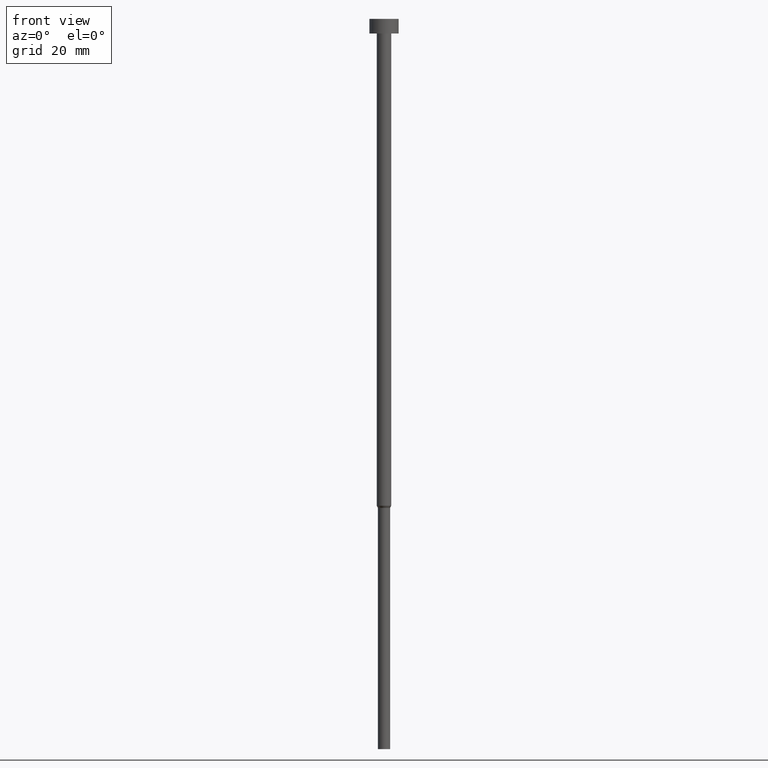
[diagram: clean part render]
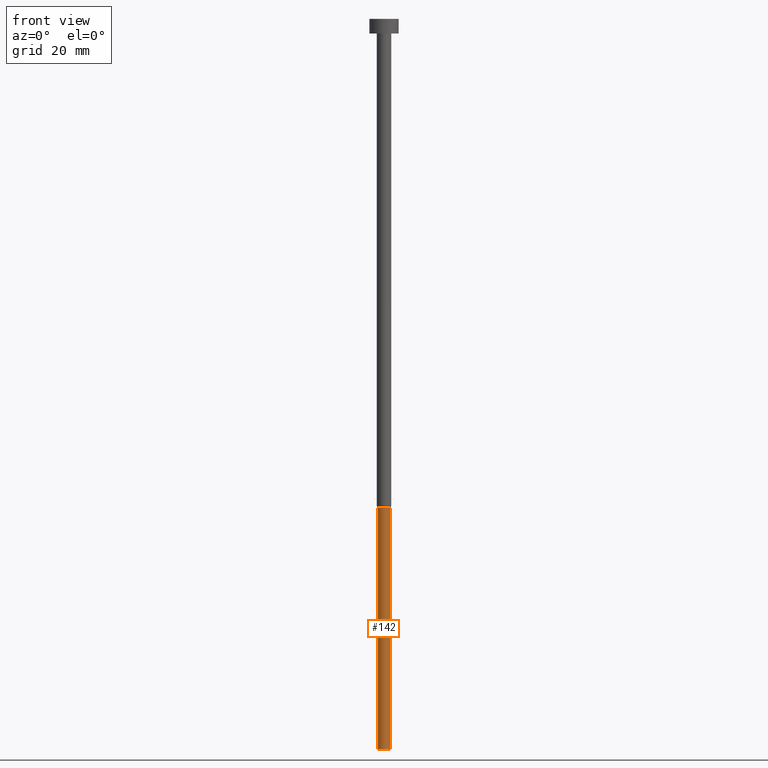
[diagram: same view with one face highlighted and labeled with its STEP entity id]
A machine part, front view. The second image highlights one B-rep face of the part: STEP entity #142.
In plain terms, the highlighted cylindrical surface (edge-blend (fillet) strip) has radius 1.25 mm, axis along (-0, -0, 1).
Its self-contained STEP definition (entity closure, byte-faithful):
#9 = EDGE_CURVE ( 'NONE', #242, #315, #59, .T. ) ;
#11 = VECTOR ( 'NONE', #190, 1000.000000000000000 ) ;
#15 = CIRCLE ( 'NONE', #121, 1.250000000000000000 ) ;
#23 = CYLINDRICAL_SURFACE ( 'NONE', #54, 1.250000000000000000 ) ;
#31 = CARTESIAN_POINT ( 'NONE',  ( 0.000000000000000000, 0.000000000000000000, -100.4330127018922241 ) ) ;
#32 = VECTOR ( 'NONE', #36, 1000.000000000000000 ) ;
#35 = DIRECTION ( 'NONE',  ( -0.000000000000000000, -0.000000000000000000, 1.000000000000000000 ) ) ;
#36 = DIRECTION ( 'NONE',  ( -0.000000000000000000, -0.000000000000000000, 1.000000000000000000 ) ) ;
#45 = ORIENTED_EDGE ( 'NONE', *, *, #9, .T. ) ;
#54 = AXIS2_PLACEMENT_3D ( 'NONE', #65, #349, #316 ) ;
#55 = CARTESIAN_POINT ( 'NONE',  ( 1.250000000000000000, 0.000000000000000000, -150.0000000000000000 ) ) ;
#58 = ORIENTED_EDGE ( 'NONE', *, *, #299, .T. ) ;
#59 = CIRCLE ( 'NONE', #264, 1.250000000000000000 ) ;
#63 = VERTEX_POINT ( 'NONE', #175 ) ;
#65 = CARTESIAN_POINT ( 'NONE',  ( 0.000000000000000000, 0.000000000000000000, 0.000000000000000000 ) ) ;
#83 = CARTESIAN_POINT ( 'NONE',  ( -1.250000000000000000, 1.530808498934191571E-16, 0.000000000000000000 ) ) ;
#85 = CARTESIAN_POINT ( 'NONE',  ( 0.000000000000000000, 0.000000000000000000, -150.0000000000000000 ) ) ;
#117 = ORIENTED_EDGE ( 'NONE', *, *, #347, .F. ) ;
#121 = AXIS2_PLACEMENT_3D ( 'NONE', #31, #225, #172 ) ;
#142 = ADVANCED_FACE ( 'NONE', ( #210 ), #23, .T. ) ;
#143 = CARTESIAN_POINT ( 'NONE',  ( 1.250000000000000000, 0.000000000000000000, 0.000000000000000000 ) ) ;
#172 = DIRECTION ( 'NONE',  ( 1.000000000000000000, 0.000000000000000000, 0.000000000000000000 ) ) ;
#173 = DIRECTION ( 'NONE',  ( 1.000000000000000000, 0.000000000000000000, 0.000000000000000000 ) ) ;
#175 = CARTESIAN_POINT ( 'NONE',  ( 1.250000000000000000, 0.000000000000000000, -100.4330127018922241 ) ) ;
#190 = DIRECTION ( 'NONE',  ( -0.000000000000000000, -0.000000000000000000, 1.000000000000000000 ) ) ;
#210 = FACE_OUTER_BOUND ( 'NONE', #312, .T. ) ;
#225 = DIRECTION ( 'NONE',  ( -0.000000000000000000, -0.000000000000000000, 1.000000000000000000 ) ) ;
#235 = LINE ( 'NONE', #83, #32 ) ;
#242 = VERTEX_POINT ( 'NONE', #308 ) ;
#255 = VERTEX_POINT ( 'NONE', #273 ) ;
#264 = AXIS2_PLACEMENT_3D ( 'NONE', #85, #35, #173 ) ;
#265 = EDGE_CURVE ( 'NONE', #255, #63, #15, .T. ) ;
#273 = CARTESIAN_POINT ( 'NONE',  ( -1.250000000000000000, 1.530808498934191571E-16, -100.4330127018922241 ) ) ;
#299 = EDGE_CURVE ( 'NONE', #315, #63, #327, .T. ) ;
#304 = ORIENTED_EDGE ( 'NONE', *, *, #265, .F. ) ;
#308 = CARTESIAN_POINT ( 'NONE',  ( -1.250000000000000000, 1.530808498934191571E-16, -150.0000000000000000 ) ) ;
#312 = EDGE_LOOP ( 'NONE', ( #117, #45, #58, #304 ) ) ;
#315 = VERTEX_POINT ( 'NONE', #55 ) ;
#316 = DIRECTION ( 'NONE',  ( 1.000000000000000000, 0.000000000000000000, 0.000000000000000000 ) ) ;
#327 = LINE ( 'NONE', #143, #11 ) ;
#347 = EDGE_CURVE ( 'NONE', #242, #255, #235, .T. ) ;
#349 = DIRECTION ( 'NONE',  ( -0.000000000000000000, -0.000000000000000000, 1.000000000000000000 ) ) ;